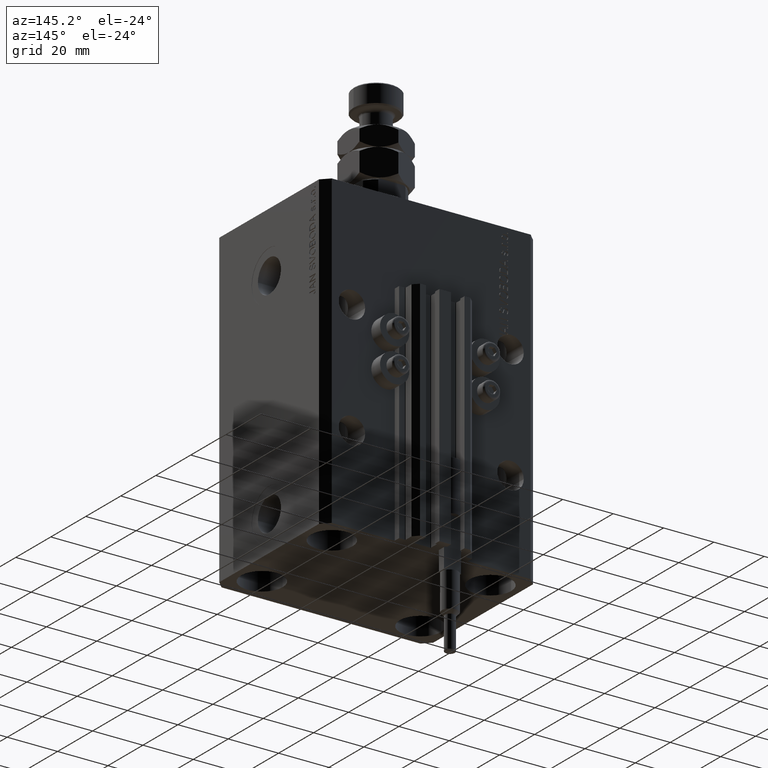
[diagram: clean part render]
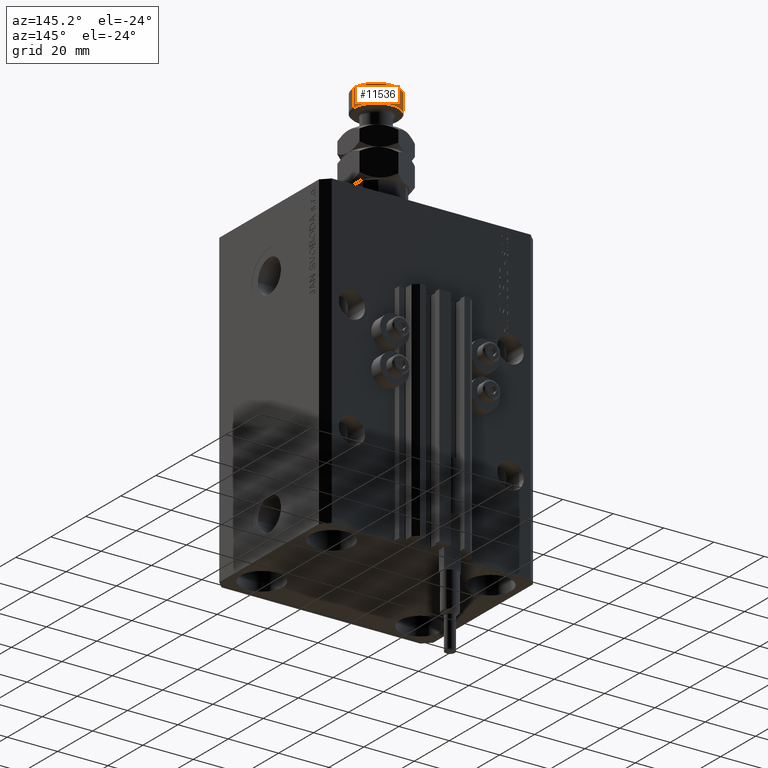
[diagram: same view with one face highlighted and labeled with its STEP entity id]
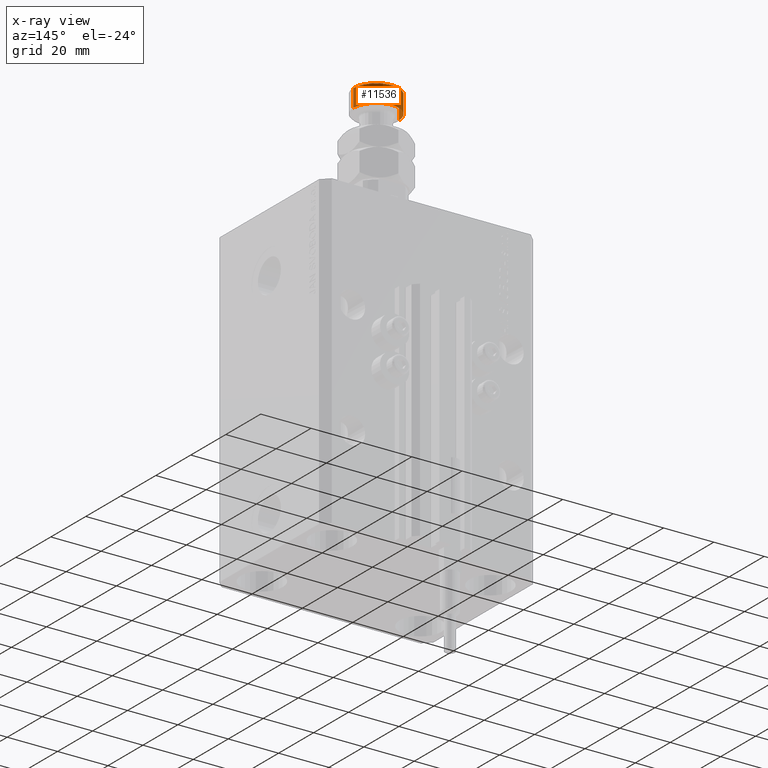
[diagram: x-ray of the same camera — body ghosted, the highlighted face saturated]
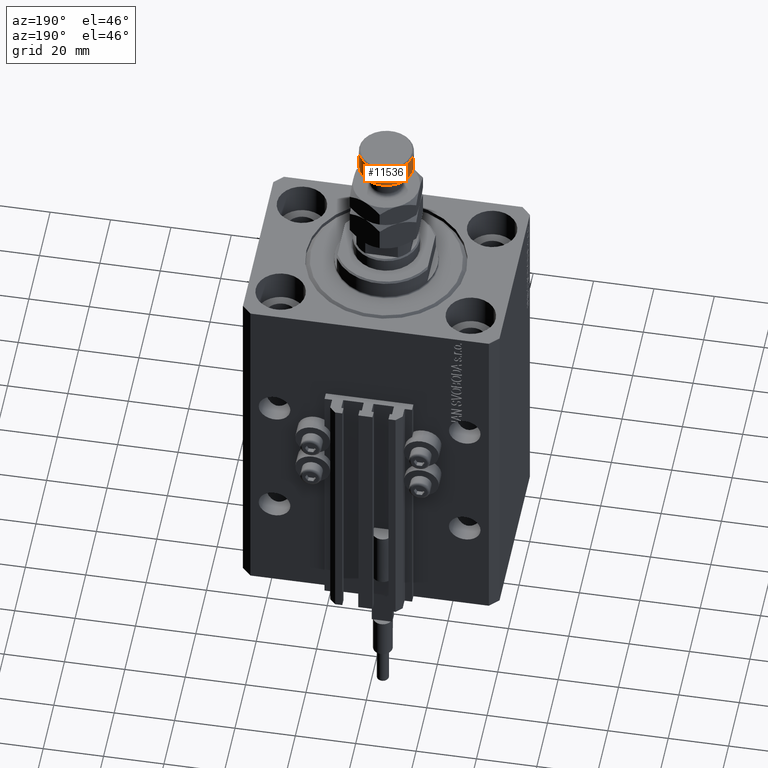
[diagram: same view with one face highlighted and labeled with its STEP entity id]
A machine part, auxiliary view. The second image highlights one B-rep face of the part: STEP entity #11536.
The next image is the same camera in x-ray: the body ghosted, the highlighted face saturated — about 0% of this face is hidden behind the body in this view.
A second angle (auxiliary view) of the same face is appended — the face is thin or edge-on in the first view.
In plain terms, the highlighted cylindrical surface (edge-blend (fillet) strip) has radius 9 mm, axis along (-0, -0, -1).
Its self-contained STEP definition (entity closure, byte-faithful):
#4165 = CIRCLE ( 'NONE', #12294, 9.000000000000000000 ) ;
#5906 = CIRCLE ( 'NONE', #6762, 9.000000000000000000 ) ;
#6762 = AXIS2_PLACEMENT_3D ( 'NONE', #46591, #38672, #43527 ) ;
#8255 = EDGE_CURVE ( 'NONE', #32530, #27531, #43572, .T. ) ;
#8496 = DIRECTION ( 'NONE',  ( -0.000000000000000000, -0.000000000000000000, -1.000000000000000000 ) ) ;
#11536 = ADVANCED_FACE ( 'NONE', ( #15602 ), #17742, .T. ) ;
#11964 = DIRECTION ( 'NONE',  ( -0.000000000000000000, -0.000000000000000000, -1.000000000000000000 ) ) ;
#12294 = AXIS2_PLACEMENT_3D ( 'NONE', #33781, #14321, #48859 ) ;
#13779 = CARTESIAN_POINT ( 'NONE',  ( -9.000000000000000000, 0.000000000000000000, 34.49999999999999289 ) ) ;
#14321 = DIRECTION ( 'NONE',  ( -0.000000000000000000, -0.000000000000000000, 1.000000000000000000 ) ) ;
#15567 = CARTESIAN_POINT ( 'NONE',  ( -9.000000000000000000, 0.000000000000000000, 35.00000000000000000 ) ) ;
#15602 = FACE_OUTER_BOUND ( 'NONE', #25562, .T. ) ;
#15933 = CARTESIAN_POINT ( 'NONE',  ( 9.000000000000000000, 1.102182119232617714E-15, 35.00000000000000000 ) ) ;
#17742 = CYLINDRICAL_SURFACE ( 'NONE', #47723, 9.000000000000000000 ) ;
#18936 = DIRECTION ( 'NONE',  ( -0.000000000000000000, -0.000000000000000000, -1.000000000000000000 ) ) ;
#19029 = VECTOR ( 'NONE', #8496, 1000.000000000000000 ) ;
#19512 = CARTESIAN_POINT ( 'NONE',  ( 9.000000000000000000, 1.102182119232617714E-15, 34.49999999999999289 ) ) ;
#22853 = CARTESIAN_POINT ( 'NONE',  ( 9.000000000000000000, 1.102182119232617714E-15, 27.50000000000000000 ) ) ;
#23284 = DIRECTION ( 'NONE',  ( -1.000000000000000000, 0.000000000000000000, 0.000000000000000000 ) ) ;
#23544 = CARTESIAN_POINT ( 'NONE',  ( 0.000000000000000000, 0.000000000000000000, 35.00000000000000000 ) ) ;
#25207 = ORIENTED_EDGE ( 'NONE', *, *, #41029, .T. ) ;
#25562 = EDGE_LOOP ( 'NONE', ( #45432, #39881, #25207, #46609 ) ) ;
#26337 = LINE ( 'NONE', #15567, #36595 ) ;
#27531 = VERTEX_POINT ( 'NONE', #22853 ) ;
#31203 = EDGE_CURVE ( 'NONE', #33703, #32215, #26337, .T. ) ;
#32215 = VERTEX_POINT ( 'NONE', #43216 ) ;
#32530 = VERTEX_POINT ( 'NONE', #19512 ) ;
#33703 = VERTEX_POINT ( 'NONE', #13779 ) ;
#33781 = CARTESIAN_POINT ( 'NONE',  ( 0.000000000000000000, 0.000000000000000000, 27.50000000000000000 ) ) ;
#36595 = VECTOR ( 'NONE', #11964, 1000.000000000000000 ) ;
#38672 = DIRECTION ( 'NONE',  ( 0.000000000000000000, 0.000000000000000000, -1.000000000000000000 ) ) ;
#39881 = ORIENTED_EDGE ( 'NONE', *, *, #8255, .T. ) ;
#41029 = EDGE_CURVE ( 'NONE', #27531, #32215, #4165, .T. ) ;
#43216 = CARTESIAN_POINT ( 'NONE',  ( -9.000000000000000000, 0.000000000000000000, 27.50000000000000000 ) ) ;
#43527 = DIRECTION ( 'NONE',  ( 1.000000000000000000, 0.000000000000000000, 0.000000000000000000 ) ) ;
#43572 = LINE ( 'NONE', #15933, #19029 ) ;
#45432 = ORIENTED_EDGE ( 'NONE', *, *, #48282, .T. ) ;
#46591 = CARTESIAN_POINT ( 'NONE',  ( 0.000000000000000000, 0.000000000000000000, 34.49999999999999289 ) ) ;
#46609 = ORIENTED_EDGE ( 'NONE', *, *, #31203, .F. ) ;
#47723 = AXIS2_PLACEMENT_3D ( 'NONE', #23544, #18936, #23284 ) ;
#48282 = EDGE_CURVE ( 'NONE', #33703, #32530, #5906, .T. ) ;
#48859 = DIRECTION ( 'NONE',  ( 1.000000000000000000, 0.000000000000000000, 0.000000000000000000 ) ) ;